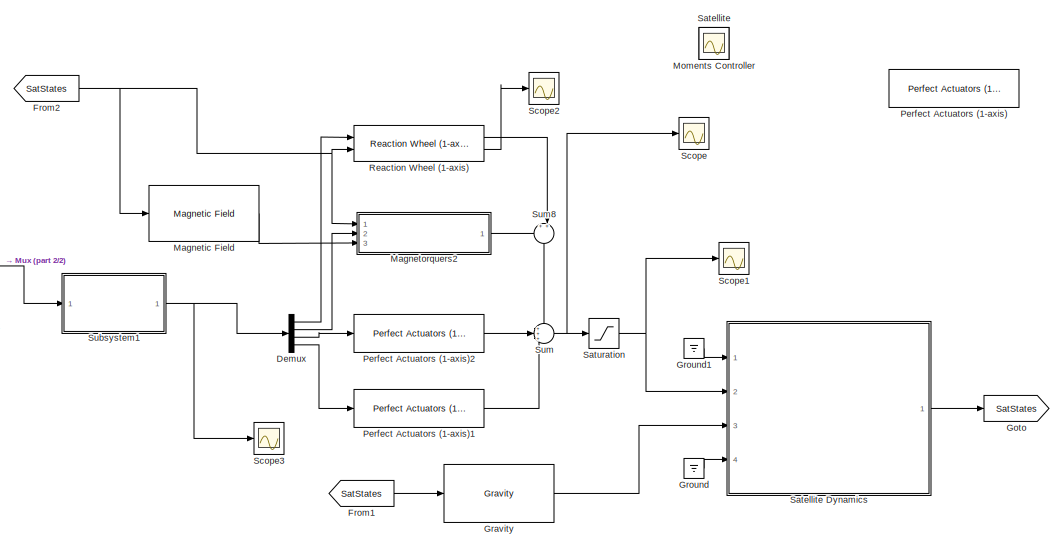
[diagram: root canvas - part 1/2, central region]
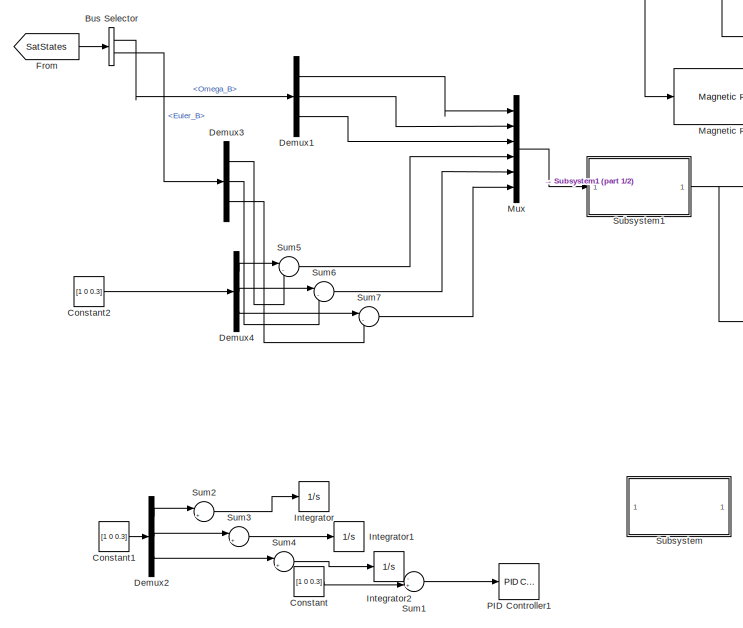
[diagram: root canvas - part 2/2, left side, full height]
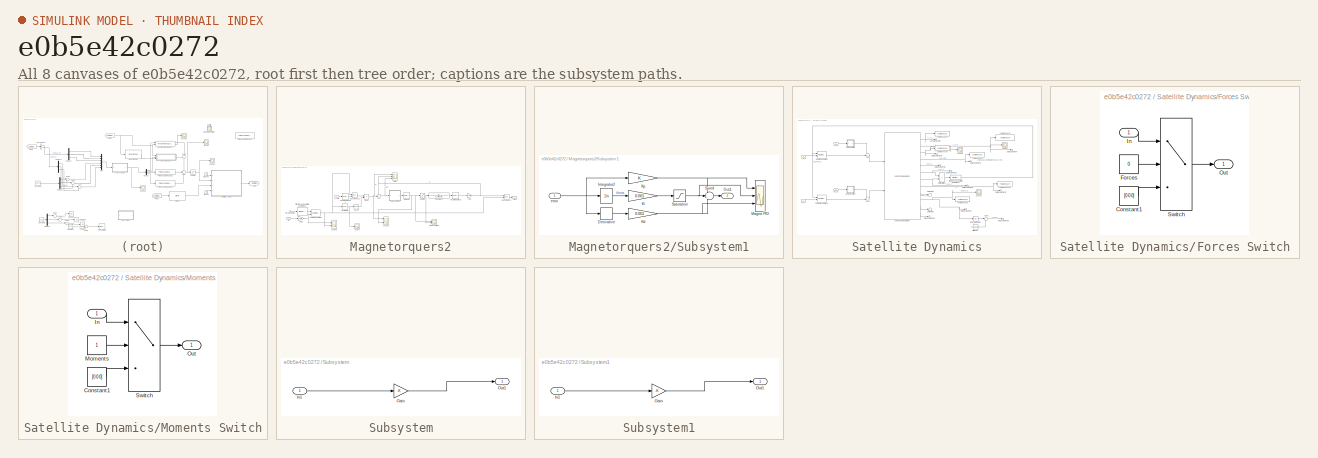
[diagram: thumbnail index - all 8 canvases of the model, root first then tree order]
MODEL slx_e0b5e42c0272
KIND model
CONFIG AbsTol = auto
CONFIG EnableMultiTasking = off
CONFIG FixedStep = 0.01
CONFIG MaxStep = 1
CONFIG MinStep = dT
CONFIG RelTol = 1e-3
CONFIG SampleTimeConstraint = Unconstrained
CONFIG Solver = FixedStepAuto
CONFIG SolverName = FixedStepAuto
CONFIG StartTime = 0.0
CONFIG StopTime = TFinal*5
WORKSPACE source: mxarray member
WORKSPACE actuators = 0
BLOCK [BusSelector] Bus Selector
  OutputAsBus = off
  OutputSignals = Omega_B,Euler_B
  Ports = [1, 2]
BLOCK [Constant] Constant
  Commented = on
  Value = [1 0 0.3]
BLOCK [Constant] Constant1
  Commented = on
  Value = [1 0 0.3]
BLOCK [Constant] Constant2
  Value = [1 0 0.3]
BLOCK [Demux] Demux
  DisplayOption = bar
  Ports = [1, 4]
BLOCK [Demux] Demux1
  DisplayOption = bar
  Outputs = 3
  Ports = [1, 3]
BLOCK [Demux] Demux2
  Commented = on
  DisplayOption = bar
  Outputs = 3
  Ports = [1, 3]
BLOCK [Demux] Demux3
  DisplayOption = bar
  Outputs = 3
  Ports = [1, 3]
BLOCK [Demux] Demux4
  DisplayOption = bar
  Outputs = 3
  Ports = [1, 3]
BLOCK [From] From
  GotoTag = SatStates
BLOCK [From] From1
  GotoTag = SatStates
BLOCK [From] From2
  GotoTag = SatStates
BLOCK [Goto] Goto
  GotoTag = SatStates
BLOCK [Reference] Gravity  REF=scars_library/Environment/Gravity  (lib defined in slx_0992aaab4a30)
  Ports = [1, 1]
  SourceBlock = scars_library/Environment/Gravity
BLOCK [Ground] Ground
BLOCK [Ground] Ground1
BLOCK [Integrator] Integrator
  Commented = on
  Ports = [1, 1]
BLOCK [Integrator] Integrator1
  Commented = on
  Ports = [1, 1]
BLOCK [Integrator] Integrator2
  Commented = on
  Ports = [1, 1]
BLOCK [Reference] Magnetic Field  REF=scars_library/Environment/Magnetic Field  (lib defined in slx_0992aaab4a30)
  Ports = [1, 1]
  SourceBlock = scars_library/Environment/Magnetic Field
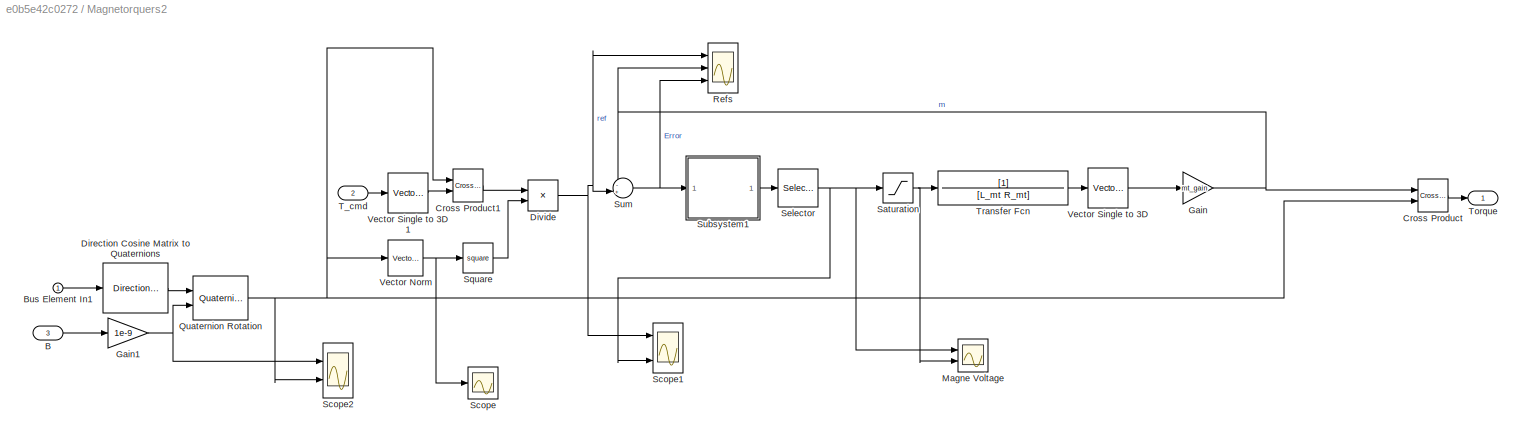
BLOCK [SubSystem] Magnetorquers2
  Ports = [3, 1]
  RequestExecContextInheritance = off
BLOCK [Inport] Magnetorquers2/B
  IconDisplay = Port number
  Port = 3
BLOCK [Inport] Magnetorquers2/Bus Element In1
  IconDisplay = Port number
BLOCK [Reference] Magnetorquers2/Cross Product  REF=vrlib/Utilities/Cross Product
  Ports = [2, 1]
  SourceBlock = vrlib/Utilities/Cross Product
  SourceProductBaseCode = SL
  SourceProductName = Simulink
  SourceType = Cross Product
BLOCK [Reference] Magnetorquers2/Cross Product1  REF=vrlib/Utilities/Cross Product
  Ports = [2, 1]
  SourceBlock = vrlib/Utilities/Cross Product
  SourceProductBaseCode = SL
  SourceProductName = Simulink
  SourceType = Cross Product
BLOCK [Reference] Magnetorquers2/Direction Cosine Matrix to Quaternions  REF=sharedtransform/Direction Cosine Matrix 
to Quaternions
  Ports = [1, 1]
  SourceBlock = sharedtransform/Direction Cosine Matrix \nto Quaternions
  SourceProductBaseCode = AE
  SourceProductName = Aerospace Blockset
  SourceType = DCM2Quaternion
BLOCK [Product] Magnetorquers2/Divide
  InputSameDT = off
  Inputs = */
  OutDataTypeStr = Inherit: Inherit via internal rule
  Ports = [2, 1]
  RndMeth = Floor
  SaturateOnIntegerOverflow = off
BLOCK [Gain] Magnetorquers2/Gain
  Gain = mt_gain
  OutDataTypeStr = Inherit: Inherit via internal rule
  ParamDataTypeStr = Inherit: Inherit via internal rule
  SaturateOnIntegerOverflow = off
BLOCK [Gain] Magnetorquers2/Gain1
  Gain = 1e-9
  OutDataTypeStr = Inherit: Inherit via internal rule
  ParamDataTypeStr = Inherit: Inherit via internal rule
  SaturateOnIntegerOverflow = off
BLOCK [Scope] Magnetorquers2/Magne Voltage
  Floating = off
  NumInputPorts = 2
  Ports = [2]
  ScopeSpecificationString = Simulink.scopes.TimeScopeBlockCfg('CurrentConfiguration', extmgr.ConfigurationSet(extmgr.Configuration('Core','General UI',true),extmgr.Configuration('Core','Source UI',true),extmgr.Configuration('Sources','WiredSimulink',true,'DataLoggingVariableName','ScopeData2'),extmgr.Configuration('Visuals','Time Domain',true,'SerializedDisplays',{struct('MinYLimReal','-1.93902','MaxYLimReal','2.74574','YLab...<+2167ch>
BLOCK [Reference] Magnetorquers2/Quaternion Rotation  REF=aerolibutil/Quaternion
Rotation
  Ports = [2, 1]
  SourceBlock = aerolibutil/Quaternion\nRotation
  SourceProductBaseCode = AE
  SourceProductName = Aerospace Blockset
  SourceType = Quaternion Rotation
BLOCK [Scope] Magnetorquers2/Refs
  Floating = off
  NumInputPorts = 3
  Ports = [3]
  ScopeSpecificationString = Simulink.scopes.TimeScopeBlockCfg('CurrentConfiguration', extmgr.ConfigurationSet(extmgr.Configuration('Core','General UI',true),extmgr.Configuration('Core','Source UI',true),extmgr.Configuration('Sources','WiredSimulink',true,'DataLoggingVariableName','ScopeData1'),extmgr.Configuration('Visuals','Time Domain',true,'SerializedDisplays',{struct('MinYLimReal','-13.05728','MaxYLimReal','19.10199','YL...<+2786ch>
BLOCK [Saturate] Magnetorquers2/Saturation
  InputPortMap = u0
  LowerLimit = -mag_sat
  Ports = [1, 1]
  UpperLimit = mag_sat
BLOCK [Scope] Magnetorquers2/Scope
  Floating = off
  NumInputPorts = 1
  Ports = [1]
  ScopeSpecificationString = Simulink.scopes.TimeScopeBlockCfg('CurrentConfiguration', extmgr.ConfigurationSet(extmgr.Configuration('Core','General UI',true),extmgr.Configuration('Core','Source UI',true),extmgr.Configuration('Sources','WiredSimulink',true,'DataLoggingVariableName','ScopeData1'),extmgr.Configuration('Visuals','Time Domain',true,'SerializedDisplays',{struct('MinYLimReal','0.000031','MaxYLimReal','0.000044','YLa...<+1416ch>
BLOCK [Scope] Magnetorquers2/Scope1
  Floating = off
  NumInputPorts = 3
  Ports = [3]
  ScopeSpecificationString = Simulink.scopes.TimeScopeBlockCfg('CurrentConfiguration', extmgr.ConfigurationSet(extmgr.Configuration('Core','General UI',true),extmgr.Configuration('Core','Source UI',true),extmgr.Configuration('Sources','WiredSimulink',true,'DataLoggingVariableName','ScopeData3'),extmgr.Configuration('Visuals','Time Domain',true,'SerializedDisplays',{struct('MinYLimReal','-526.35778','MaxYLimReal','605.31249','...<+2826ch>
BLOCK [Scope] Magnetorquers2/Scope2
  Floating = off
  NumInputPorts = 2
  Ports = [2]
  ScopeSpecificationString = Simulink.scopes.TimeScopeBlockCfg('CurrentConfiguration', extmgr.ConfigurationSet(extmgr.Configuration('Core','General UI',true),extmgr.Configuration('Core','Source UI',true),extmgr.Configuration('Sources','WiredSimulink',true,'DataLoggingVariableName','ScopeData1'),extmgr.Configuration('Visuals','Time Domain',true,'SerializedDisplays',{struct('MinYLimReal','-0.000022','MaxYLimReal','0.000043','YL...<+1495ch>
BLOCK [Selector] Magnetorquers2/Selector
  IndexOptions = Index vector (dialog)
  Indices = 1
  InputPortWidth = 3
  OutputSizes = 1
  Ports = [1, 1]
BLOCK [Math] Magnetorquers2/Square
  Operator = square
  Ports = [1, 1]
  SignedPower = off
BLOCK [SubSystem] Magnetorquers2/Subsystem1
  Commented = through
  Ports = [1, 1]
  RequestExecContextInheritance = off
BLOCK [Derivative] Magnetorquers2/Subsystem1/Derivative
BLOCK [Integrator] Magnetorquers2/Subsystem1/Integrator2
  Ports = [1, 1]
BLOCK [Gain] Magnetorquers2/Subsystem1/Kd
  Gain = 0.001
  OutDataTypeStr = Inherit: Inherit via internal rule
  ParamDataTypeStr = Inherit: Inherit via internal rule
  SaturateOnIntegerOverflow = off
BLOCK [Gain] Magnetorquers2/Subsystem1/Ki
  Gain = 0.001
  OutDataTypeStr = Inherit: Inherit via internal rule
  ParamDataTypeStr = Inherit: Inherit via internal rule
  SaturateOnIntegerOverflow = off
BLOCK [Gain] Magnetorquers2/Subsystem1/Kp
  OutDataTypeStr = Inherit: Inherit via internal rule
  ParamDataTypeStr = Inherit: Inherit via internal rule
  SaturateOnIntegerOverflow = off
BLOCK [Scope] Magnetorquers2/Subsystem1/Magne PID
  Floating = off
  NumInputPorts = 3
  Ports = [3]
  ScopeSpecificationString = Simulink.scopes.TimeScopeBlockCfg('CurrentConfiguration', extmgr.ConfigurationSet(extmgr.Configuration('Core','General UI',true),extmgr.Configuration('Core','Source UI',true),extmgr.Configuration('Sources','WiredSimulink',true,'DataLoggingVariableName','ScopeData4'),extmgr.Configuration('Visuals','Time Domain',true,'SerializedDisplays',{struct('MinYLimReal','-21.28211','MaxYLimReal','11.18774','YL...<+2853ch>
BLOCK [Outport] Magnetorquers2/Subsystem1/Out1
  IconDisplay = Port number
BLOCK [Saturate] Magnetorquers2/Subsystem1/Saturation
  InputPortMap = u0
  LowerLimit = -1
  Ports = [1, 1]
  UpperLimit = 1
BLOCK [Sum] Magnetorquers2/Subsystem1/Sum4
  IconShape = round
  InputSameDT = off
  Inputs = +++
  OutDataTypeStr = Inherit: Inherit via internal rule
  Ports = [3, 1]
  SaturateOnIntegerOverflow = off
BLOCK [Inport] Magnetorquers2/Subsystem1/error
  IconDisplay = Port number
BLOCK [Sum] Magnetorquers2/Sum
  IconShape = round
  InputSameDT = off
  Inputs = -+|
  OutDataTypeStr = Inherit: Inherit via internal rule
  Ports = [2, 1]
  SaturateOnIntegerOverflow = off
BLOCK [Inport] Magnetorquers2/T_cmd
  IconDisplay = Port number
  Port = 2
BLOCK [Outport] Magnetorquers2/Torque
  IconDisplay = Port number
BLOCK [TransferFcn] Magnetorquers2/Transfer Fcn
  Denominator = [L_mt R_mt]
BLOCK [Reference] Magnetorquers2/Vector Norm  REF=scars_library/Vector Norm  (lib defined in slx_0992aaab4a30)
  Ports = [1, 1]
  SourceBlock = scars_library/Vector Norm
  SourceType = SubSystem
BLOCK [Reference] Magnetorquers2/Vector Single to 3D   REF=scars_library/Actuators/Vector Single to 3D   (lib defined in slx_0992aaab4a30)
  Ports = [1, 1]
  SourceBlock = scars_library/Actuators/Vector Single to 3D
BLOCK [Reference] Magnetorquers2/Vector Single to 3D 1  REF=scars_library/Actuators/Vector Single to 3D   (lib defined in slx_0992aaab4a30)
  Ports = [1, 1]
  SourceBlock = scars_library/Actuators/Vector Single to 3D
BLOCK [Scope] Moments Controller
  Floating = off
  IOType = viewer
  NumInputPorts = 1
  Ports = []
  ScopeSpecificationString = Simulink.scopes.TimeScopeBlockCfg('CurrentConfiguration', extmgr.ConfigurationSet(extmgr.Configuration('Core','General UI',true),extmgr.Configuration('Core','Source UI',true),extmgr.Configuration('Sources','WiredSimulink',true,'DataLoggingVariableName','ScopeData3'),extmgr.Configuration('Visuals','Time Domain',true,'SerializedDisplays',{struct('MinYLimReal','-5.625','MaxYLimReal','50.625','YLabelR...<+5175ch>
BLOCK [Mux] Mux
  DisplayOption = bar
  Inputs = 6
  Ports = [6, 1]
BLOCK [Reference] PID Controller1  REF=simulink/Continuous/PID Controller
  Commented = on
  Ports = [1, 1]
  SourceBlock = simulink/Continuous/PID Controller
  SourceProductBaseCode = SL
  SourceProductName = Simulink
  SourceType = PID 1dof
BLOCK [Reference] Perfect Actuators (1-axis)  REF=scars_library/Actuators/Perfect Actuators (1-axis)  (lib defined in slx_0992aaab4a30)
  Commented = on
  Ports = [1, 1]
  SourceBlock = scars_library/Actuators/Perfect Actuators (1-axis)
BLOCK [Reference] Perfect Actuators (1-axis)1  REF=scars_library/Actuators/Perfect Actuators (1-axis)  (lib defined in slx_0992aaab4a30)
  Ports = [1, 1]
  SourceBlock = scars_library/Actuators/Perfect Actuators (1-axis)
BLOCK [Reference] Perfect Actuators (1-axis)2  REF=scars_library/Actuators/Perfect Actuators (1-axis)  (lib defined in slx_0992aaab4a30)
  Ports = [1, 1]
  SourceBlock = scars_library/Actuators/Perfect Actuators (1-axis)
BLOCK [Reference] Reaction Wheel (1-axis)  REF=scars_library/Actuators/Reaction Wheel (1-axis)  (lib defined in slx_0992aaab4a30)
  Ports = [2, 2]
  SourceBlock = scars_library/Actuators/Reaction Wheel (1-axis)
BLOCK [Scope] Satellite
  Floating = off
  IOType = viewer
  NumInputPorts = 1
  Ports = []
  ScopeSpecificationString = Simulink.scopes.TimeScopeBlockCfg('CurrentConfiguration', extmgr.ConfigurationSet(extmgr.Configuration('Core','General UI',true),extmgr.Configuration('Core','Source UI',true),extmgr.Configuration('Sources','WiredSimulink',true,'DataLoggingVariableName','ScopeData1'),extmgr.Configuration('Visuals','Time Domain',true,'SerializedDisplays',{struct('MinYLimReal','-2495512.27644','MaxYLimReal','7174528....<+5110ch>
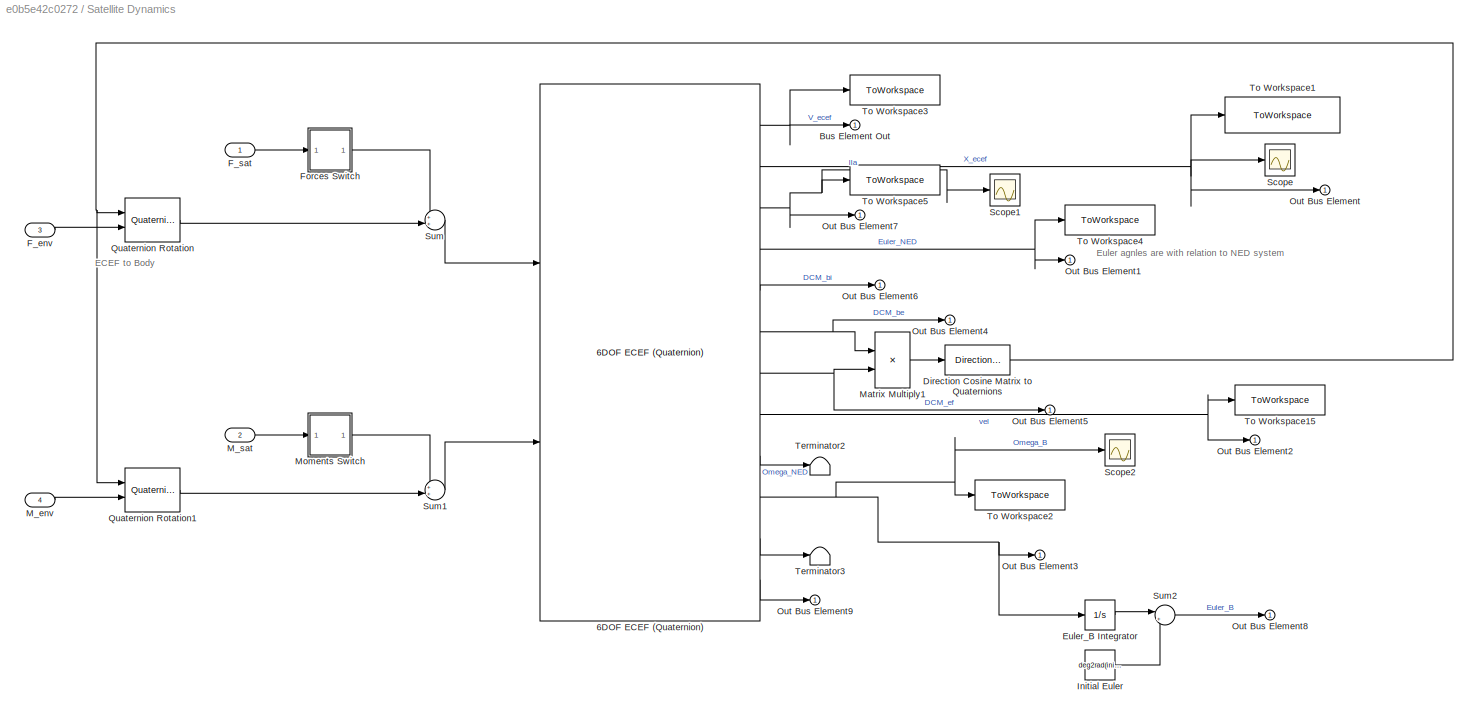
BLOCK [SubSystem] Satellite Dynamics
  AncestorBlock = scars_library/Advanced/Satellite Dynamics
  Ports = [4, 1]
  RequestExecContextInheritance = off
BLOCK [Reference] Satellite Dynamics/6DOF ECEF (Quaternion)  REF=aerolib6dof2/6DOF ECEF (Quaternion)
  Ports = [2, 12]
  SourceBlock = aerolib6dof2/6DOF ECEF (Quaternion)
  SourceProductBaseCode = AE
  SourceProductName = Aerospace Blockset
  SourceType = 6DOF EoM (ECEF)
BLOCK [Outport] Satellite Dynamics/Bus Element Out
  IconDisplay = Port number
BLOCK [Reference] Satellite Dynamics/Direction Cosine Matrix to Quaternions  REF=sharedtransform/Direction Cosine Matrix 
to Quaternions
  Ports = [1, 1]
  SourceBlock = sharedtransform/Direction Cosine Matrix \nto Quaternions
  SourceProductBaseCode = AE
  SourceProductName = Aerospace Blockset
  SourceType = DCM2Quaternion
BLOCK [Integrator] Satellite Dynamics/Euler_B Integrator
  Ports = [1, 1]
BLOCK [Inport] Satellite Dynamics/F_env
  IconDisplay = Port number
  Port = 3
BLOCK [Inport] Satellite Dynamics/F_sat
  IconDisplay = Port number
BLOCK [SubSystem] Satellite Dynamics/Forces Switch
  Ports = [1, 1]
  RequestExecContextInheritance = off
BLOCK [Constant] Satellite Dynamics/Forces Switch/Constant1
  Value = [0 0 0]
BLOCK [Constant] Satellite Dynamics/Forces Switch/Forces
  Value = 0
BLOCK [Inport] Satellite Dynamics/Forces Switch/In
  IconDisplay = Port number
BLOCK [Outport] Satellite Dynamics/Forces Switch/Out
  IconDisplay = Port number
BLOCK [Switch] Satellite Dynamics/Forces Switch/Switch
  Criteria = u2 > Threshold
  InputSameDT = off
  SaturateOnIntegerOverflow = off
BLOCK [Constant] Satellite Dynamics/Initial Euler
  Value = deg2rad(initEuler)
BLOCK [Inport] Satellite Dynamics/M_env
  IconDisplay = Port number
  Port = 4
BLOCK [Inport] Satellite Dynamics/M_sat
  IconDisplay = Port number
  Port = 2
BLOCK [Product] Satellite Dynamics/Matrix Multiply1
  InputSameDT = off
  Multiplication = Matrix(*)
  OutDataTypeStr = Inherit: Inherit via internal rule
  Ports = [2, 1]
  RndMeth = Floor
  SaturateOnIntegerOverflow = off
BLOCK [SubSystem] Satellite Dynamics/Moments Switch
  Ports = [1, 1]
  RequestExecContextInheritance = off
BLOCK [Constant] Satellite Dynamics/Moments Switch/Constant1
  Value = [0 0 0]
BLOCK [Inport] Satellite Dynamics/Moments Switch/In
  IconDisplay = Port number
BLOCK [Constant] Satellite Dynamics/Moments Switch/Moments
BLOCK [Outport] Satellite Dynamics/Moments Switch/Out
  IconDisplay = Port number
BLOCK [Switch] Satellite Dynamics/Moments Switch/Switch
  Criteria = u2 > Threshold
  InputSameDT = off
  SaturateOnIntegerOverflow = off
BLOCK [Outport] Satellite Dynamics/Out Bus Element
  IconDisplay = Port number
BLOCK [Outport] Satellite Dynamics/Out Bus Element1
  IconDisplay = Port number
BLOCK [Outport] Satellite Dynamics/Out Bus Element2
  IconDisplay = Port number
BLOCK [Outport] Satellite Dynamics/Out Bus Element3
  IconDisplay = Port number
BLOCK [Outport] Satellite Dynamics/Out Bus Element4
  IconDisplay = Port number
BLOCK [Outport] Satellite Dynamics/Out Bus Element5
  IconDisplay = Port number
BLOCK [Outport] Satellite Dynamics/Out Bus Element6
  IconDisplay = Port number
BLOCK [Outport] Satellite Dynamics/Out Bus Element7
  IconDisplay = Port number
BLOCK [Outport] Satellite Dynamics/Out Bus Element8
  IconDisplay = Port number
BLOCK [Outport] Satellite Dynamics/Out Bus Element9
  IconDisplay = Port number
BLOCK [Reference] Satellite Dynamics/Quaternion Rotation  REF=aerolibutil/Quaternion
Rotation
  Ports = [2, 1]
  SourceBlock = aerolibutil/Quaternion\nRotation
  SourceProductBaseCode = AE
  SourceProductName = Aerospace Blockset
  SourceType = Quaternion Rotation
BLOCK [Reference] Satellite Dynamics/Quaternion Rotation1  REF=aerolibutil/Quaternion
Rotation
  Ports = [2, 1]
  SourceBlock = aerolibutil/Quaternion\nRotation
  SourceProductBaseCode = AE
  SourceProductName = Aerospace Blockset
  SourceType = Quaternion Rotation
BLOCK [Scope] Satellite Dynamics/Scope
  Floating = off
  NumInputPorts = 1
  Ports = [1]
  ScopeSpecificationString = Simulink.scopes.TimeScopeBlockCfg('CurrentConfiguration', extmgr.ConfigurationSet(extmgr.Configuration('Core','General UI',true),extmgr.Configuration('Core','Source UI',true),extmgr.Configuration('Sources','WiredSimulink',true,'DataLoggingVariableName','ScopeData1'),extmgr.Configuration('Visuals','Time Domain',true,'SerializedDisplays',{struct('MinYLimReal','-97204421332250365813144197609136039604...<+2645ch>
BLOCK [Scope] Satellite Dynamics/Scope1
  Floating = off
  NumInputPorts = 1
  Ports = [1]
  ScopeSpecificationString = Simulink.scopes.TimeScopeBlockCfg('CurrentConfiguration', extmgr.ConfigurationSet(extmgr.Configuration('Core','General UI',true),extmgr.Configuration('Core','Source UI',true),extmgr.Configuration('Sources','WiredSimulink',true,'DataLoggingVariableName','ScopeData1'),extmgr.Configuration('Visuals','Time Domain',true,'SerializedDisplays',{struct('MinYLimReal','-11119347005560318789794136926815290750...<+2686ch>
BLOCK [Scope] Satellite Dynamics/Scope2
  Floating = off
  NumInputPorts = 1
  Ports = [1]
  ScopeSpecificationString = Simulink.scopes.TimeScopeBlockCfg('CurrentConfiguration', extmgr.ConfigurationSet(extmgr.Configuration('Core','General UI',true),extmgr.Configuration('Core','Source UI',true),extmgr.Configuration('Sources','WiredSimulink',true,'DataLoggingVariableName','ScopeData2'),extmgr.Configuration('Visuals','Time Domain',true,'SerializedDisplays',{struct('MinYLimReal','-0.00444','MaxYLimReal','0.01567','YLab...<+1446ch>
BLOCK [Sum] Satellite Dynamics/Sum
  IconShape = round
  InputSameDT = off
  Inputs = ++|
  OutDataTypeStr = Inherit: Inherit via internal rule
  Ports = [2, 1]
  SaturateOnIntegerOverflow = off
BLOCK [Sum] Satellite Dynamics/Sum1
  IconShape = round
  InputSameDT = off
  Inputs = ++|
  OutDataTypeStr = Inherit: Inherit via internal rule
  Ports = [2, 1]
  SaturateOnIntegerOverflow = off
BLOCK [Sum] Satellite Dynamics/Sum2
  IconShape = round
  InputSameDT = off
  Inputs = |++
  OutDataTypeStr = Inherit: Inherit via internal rule
  Ports = [2, 1]
  SaturateOnIntegerOverflow = off
BLOCK [Terminator] Satellite Dynamics/Terminator2
BLOCK [Terminator] Satellite Dynamics/Terminator3
BLOCK [ToWorkspace] Satellite Dynamics/To Workspace1
  FixptAsFi = on
  MaxDataPoints = inf
  Ports = [1]
  SampleTime = -1
  VariableName = r_ecef
BLOCK [ToWorkspace] Satellite Dynamics/To Workspace15
  FixptAsFi = on
  MaxDataPoints = inf
  Ports = [1]
  SampleTime = -1
  Save2DSignal = 2-D array (concatenate along first dimension)
  VariableName = v_b
BLOCK [ToWorkspace] Satellite Dynamics/To Workspace2
  FixptAsFi = on
  MaxDataPoints = inf
  Ports = [1]
  SampleTime = -1
  Save2DSignal = 2-D array (concatenate along first dimension)
  VariableName = omega_b
BLOCK [ToWorkspace] Satellite Dynamics/To Workspace3
  FixptAsFi = on
  MaxDataPoints = inf
  Ports = [1]
  SampleTime = -1
  Save2DSignal = 2-D array (concatenate along first dimension)
  VariableName = v_ecef
BLOCK [ToWorkspace] Satellite Dynamics/To Workspace4
  FixptAsFi = on
  MaxDataPoints = inf
  Ports = [1]
  SampleTime = -1
  Save2DSignal = 2-D array (concatenate along first dimension)
  VariableName = euler
BLOCK [ToWorkspace] Satellite Dynamics/To Workspace5
  FixptAsFi = on
  MaxDataPoints = inf
  Ports = [1]
  SampleTime = -1
  Save2DSignal = 2-D array (concatenate along first dimension)
  VariableName = lla
BLOCK [Saturate] Saturation
  InputPortMap = u0
  LowerLimit = -1
  Ports = [1, 1]
  UpperLimit = 1
BLOCK [Scope] Scope
  Floating = off
  NumInputPorts = 1
  Ports = [1]
  ScopeSpecificationString = Simulink.scopes.TimeScopeBlockCfg('CurrentConfiguration', extmgr.ConfigurationSet(extmgr.Configuration('Core','General UI',true),extmgr.Configuration('Core','Source UI',true),extmgr.Configuration('Sources','WiredSimulink',true,'DataLoggingVariableName','ScopeData1'),extmgr.Configuration('Visuals','Time Domain',true,'SerializedDisplays',{struct('MinYLimReal','-0.00699','MaxYLimReal','0.06295','YLab...<+1430ch>
BLOCK [Scope] Scope1
  Floating = off
  NumInputPorts = 1
  Ports = [1]
  ScopeSpecificationString = Simulink.scopes.TimeScopeBlockCfg('CurrentConfiguration', extmgr.ConfigurationSet(extmgr.Configuration('Core','General UI',true),extmgr.Configuration('Core','Source UI',true),extmgr.Configuration('Sources','WiredSimulink',true,'DataLoggingVariableName','ScopeData2'),extmgr.Configuration('Visuals','Time Domain',true,'SerializedDisplays',{struct('MinYLimReal','-0.41785','MaxYLimReal','0.81197','YLab...<+1831ch>
BLOCK [Scope] Scope2
  Floating = off
  NumInputPorts = 1
  Ports = [1]
  ScopeSpecificationString = Simulink.scopes.TimeScopeBlockCfg('CurrentConfiguration', extmgr.ConfigurationSet(extmgr.Configuration('Core','General UI',true),extmgr.Configuration('Core','Source UI',true),extmgr.Configuration('Sources','WiredSimulink',true,'DataLoggingVariableName','ScopeData1'),extmgr.Configuration('Visuals','Time Domain',true,'SerializedDisplays',{struct('MinYLimReal','-0.00095','MaxYLimReal','0.00854','YLab...<+1818ch>
BLOCK [Scope] Scope3
  Floating = off
  NumInputPorts = 1
  Ports = [1]
  ScopeSpecificationString = Simulink.scopes.TimeScopeBlockCfg('CurrentConfiguration', extmgr.ConfigurationSet(extmgr.Configuration('Core','General UI',true),extmgr.Configuration('Core','Source UI',true),extmgr.Configuration('Sources','WiredSimulink',true,'DataLoggingVariableName','ScopeData2'),extmgr.Configuration('Visuals','Time Domain',true,'SerializedDisplays',{struct('MinYLimReal','-0.41785','MaxYLimReal','0.81197','YLab...<+1486ch>
BLOCK [SubSystem] Subsystem
  Commented = on
  Ports = [1, 1]
  RequestExecContextInheritance = off
BLOCK [Gain] Subsystem/Gain
  Gain = -K
  Multiplication = Matrix(K*u)
  OutDataTypeStr = Inherit: Inherit via internal rule
  ParamDataTypeStr = Inherit: Inherit via internal rule
  SaturateOnIntegerOverflow = off
BLOCK [Inport] Subsystem/In1
  IconDisplay = Port number
BLOCK [Outport] Subsystem/Out1
  IconDisplay = Port number
BLOCK [SubSystem] Subsystem1
  Commented = on
  Ports = [1, 1]
  RequestExecContextInheritance = off
BLOCK [Gain] Subsystem1/Gain
  Gain = -K
  Multiplication = Matrix(K*u)
  OutDataTypeStr = Inherit: Inherit via internal rule
  ParamDataTypeStr = Inherit: Inherit via internal rule
  SaturateOnIntegerOverflow = off
BLOCK [Inport] Subsystem1/In1
  IconDisplay = Port number
BLOCK [Outport] Subsystem1/Out1
  IconDisplay = Port number
BLOCK [Sum] Sum
  IconShape = round
  InputSameDT = off
  Inputs = +++
  OutDataTypeStr = Inherit: Inherit via internal rule
  Ports = [3, 1]
  SaturateOnIntegerOverflow = off
BLOCK [Sum] Sum1
  Commented = on
  IconShape = round
  InputSameDT = off
  Inputs = -+|
  OutDataTypeStr = Inherit: Inherit via internal rule
  Ports = [2, 1]
  SaturateOnIntegerOverflow = off
BLOCK [Sum] Sum2
  Commented = on
  IconShape = round
  InputSameDT = off
  Inputs = |+-
  OutDataTypeStr = Inherit: Inherit via internal rule
  Ports = [2, 1]
  SaturateOnIntegerOverflow = off
BLOCK [Sum] Sum3
  Commented = on
  IconShape = round
  InputSameDT = off
  Inputs = |+-
  OutDataTypeStr = Inherit: Inherit via internal rule
  Ports = [2, 1]
  SaturateOnIntegerOverflow = off
BLOCK [Sum] Sum4
  Commented = on
  IconShape = round
  InputSameDT = off
  Inputs = |+-
  OutDataTypeStr = Inherit: Inherit via internal rule
  Ports = [2, 1]
  SaturateOnIntegerOverflow = off
BLOCK [Sum] Sum5
  IconShape = round
  InputSameDT = off
  Inputs = |-+
  OutDataTypeStr = Inherit: Inherit via internal rule
  Ports = [2, 1]
  SaturateOnIntegerOverflow = off
BLOCK [Sum] Sum6
  IconShape = round
  InputSameDT = off
  Inputs = |-+
  OutDataTypeStr = Inherit: Inherit via internal rule
  Ports = [2, 1]
  SaturateOnIntegerOverflow = off
BLOCK [Sum] Sum7
  IconShape = round
  InputSameDT = off
  Inputs = |-+
  OutDataTypeStr = Inherit: Inherit via internal rule
  Ports = [2, 1]
  SaturateOnIntegerOverflow = off
BLOCK [Sum] Sum8
  IconShape = round
  InputSameDT = off
  Inputs = ++|
  OutDataTypeStr = Inherit: Inherit via internal rule
  Ports = [2, 1]
  SaturateOnIntegerOverflow = off
ANNOTATION Satellite Dynamics: ECEF to Body
ANNOTATION Satellite Dynamics: Euler agnles are with relation to NED system
LINE Bus Selector:1 -> Demux1:1
LINE Bus Selector:2 -> Demux3:1
LINE Constant1:1 -> Demux2:1
LINE Constant2:1 -> Demux4:1
LINE Constant:1 -> Sum1:2
LINE Demux1:1 -> Mux:1
LINE Demux1:2 -> Mux:2
LINE Demux1:3 -> Mux:3
LINE Demux2:1 -> Sum2:1
LINE Demux2:2 -> Sum3:1
LINE Demux2:3 -> Sum4:1
LINE Demux3:1 -> Sum5:2
LINE Demux3:2 -> Sum6:2
LINE Demux3:3 -> Sum7:2
LINE Demux4:1 -> Sum5:1
LINE Demux4:2 -> Sum6:1
LINE Demux4:3 -> Sum7:1
LINE Demux:1 -> Reaction Wheel (1-axis):1
LINE Demux:2 -> Magnetorquers2:2
LINE Demux:3 -> Perfect Actuators (1-axis)2:1
LINE Demux:4 -> Perfect Actuators (1-axis)1:1
LINE From1:1 -> Gravity:1
NET From2:1 -> Magnetic Field:1, Magnetorquers2:1, Reaction Wheel (1-axis):2
LINE From:1 -> Bus Selector:1
LINE Gravity:1 -> Satellite Dynamics:3
LINE Ground1:1 -> Satellite Dynamics:1
LINE Ground:1 -> Satellite Dynamics:4
LINE Magnetic Field:1 -> Magnetorquers2:3
LINE Magnetorquers2/B:1 -> Magnetorquers2/Gain1:1
LINE Magnetorquers2/Bus Element In1:1 -> Magnetorquers2/Direction Cosine Matrix to Quaternions:1
LINE Magnetorquers2/Cross Product1:1 -> Magnetorquers2/Divide:1
LINE Magnetorquers2/Cross Product:1 -> Magnetorquers2/Torque:1
LINE Magnetorquers2/Direction Cosine Matrix to Quaternions:1 -> Magnetorquers2/Quaternion Rotation:1
NET Magnetorquers2/Divide:1 -> Magnetorquers2/Refs:1, Magnetorquers2/Scope1:1, Magnetorquers2/Sum:2
NET Magnetorquers2/Gain1:1 -> Magnetorquers2/Quaternion Rotation:2, Magnetorquers2/Scope2:1
NET Magnetorquers2/Gain:1 -> Magnetorquers2/Cross Product:1, Magnetorquers2/Refs:2, Magnetorquers2/Sum:1
NET Magnetorquers2/Quaternion Rotation:1 -> Magnetorquers2/Cross Product1:1, Magnetorquers2/Cross Product:2, Magnetorquers2/Scope2:2, Magnetorquers2/Vector Norm:1
NET Magnetorquers2/Saturation:1 -> Magnetorquers2/Magne Voltage:2, Magnetorquers2/Transfer Fcn:1
NET Magnetorquers2/Selector:1 -> Magnetorquers2/Magne Voltage:1, Magnetorquers2/Saturation:1, Magnetorquers2/Scope1:3
LINE Magnetorquers2/Square:1 -> Magnetorquers2/Divide:2
LINE Magnetorquers2/Subsystem1/Derivative:1 -> Magnetorquers2/Subsystem1/Kd:1
LINE Magnetorquers2/Subsystem1/Integrator2:1 -> Magnetorquers2/Subsystem1/Ki:1
NET Magnetorquers2/Subsystem1/Kd:1 -> Magnetorquers2/Subsystem1/Magne PID:3, Magnetorquers2/Subsystem1/Sum4:3
LINE Magnetorquers2/Subsystem1/Ki:1 -> Magnetorquers2/Subsystem1/Saturation:1
NET Magnetorquers2/Subsystem1/Kp:1 -> Magnetorquers2/Subsystem1/Magne PID:1, Magnetorquers2/Subsystem1/Sum4:1
NET Magnetorquers2/Subsystem1/Saturation:1 -> Magnetorquers2/Subsystem1/Magne PID:2, Magnetorquers2/Subsystem1/Sum4:2
LINE Magnetorquers2/Subsystem1/Sum4:1 -> Magnetorquers2/Subsystem1/Out1:1
NET Magnetorquers2/Subsystem1/error:1 -> Magnetorquers2/Subsystem1/Derivative:1, Magnetorquers2/Subsystem1/Integrator2:1, Magnetorquers2/Subsystem1/Kp:1
LINE Magnetorquers2/Subsystem1:1 -> Magnetorquers2/Selector:1
NET Magnetorquers2/Sum:1 -> Magnetorquers2/Refs:3, Magnetorquers2/Subsystem1:1
LINE Magnetorquers2/T_cmd:1 -> Magnetorquers2/Vector Single to 3D 1:1
LINE Magnetorquers2/Transfer Fcn:1 -> Magnetorquers2/Vector Single to 3D :1
NET Magnetorquers2/Vector Norm:1 -> Magnetorquers2/Scope:1, Magnetorquers2/Square:1
LINE Magnetorquers2/Vector Single to 3D 1:1 -> Magnetorquers2/Cross Product1:2
LINE Magnetorquers2/Vector Single to 3D :1 -> Magnetorquers2/Gain:1
LINE Magnetorquers2:1 -> Sum8:1
LINE Mux:1 -> Subsystem1:1
LINE Perfect Actuators (1-axis)1:1 -> Sum:3
LINE Perfect Actuators (1-axis)2:1 -> Sum:2
LINE Reaction Wheel (1-axis):1 -> Sum8:2
LINE Reaction Wheel (1-axis):2 -> Scope2:1
LINE Satellite Dynamics:1 -> Goto:1
NET Saturation:1 -> Satellite Dynamics:2, Scope1:1
LINE Subsystem/Gain:1 -> Subsystem/Out1:1
LINE Subsystem/In1:1 -> Subsystem/Gain:1
LINE Subsystem1/Gain:1 -> Subsystem1/Out1:1
LINE Subsystem1/In1:1 -> Subsystem1/Gain:1
NET Subsystem1:1 -> Demux:1, Scope3:1
LINE Sum1:1 -> PID Controller1:1
LINE Sum2:1 -> Integrator:1
LINE Sum3:1 -> Integrator1:1
LINE Sum4:1 -> Integrator2:1
LINE Sum5:1 -> Mux:4
LINE Sum6:1 -> Mux:5
LINE Sum7:1 -> Mux:6
LINE Sum8:1 -> Sum:1
NET Sum:1 -> Saturation:1, Scope:1
note: NET lines group one-source signal fan-out (src -> all destinations, sorted); 1:1 wires keep LINE
